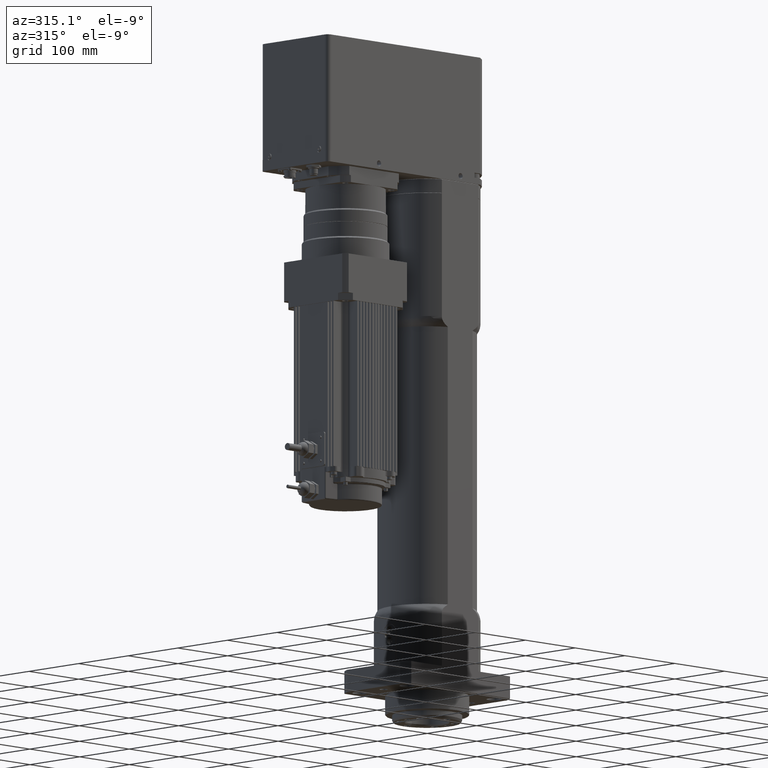
[diagram: clean part render]
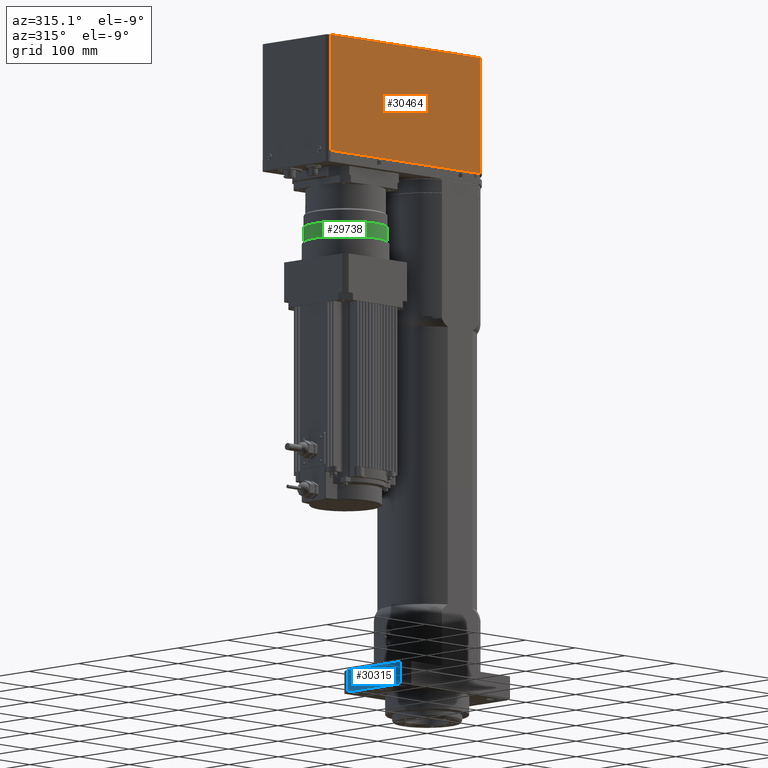
[diagram: same view with three faces highlighted in distinct colors, each labeled with its STEP entity id]
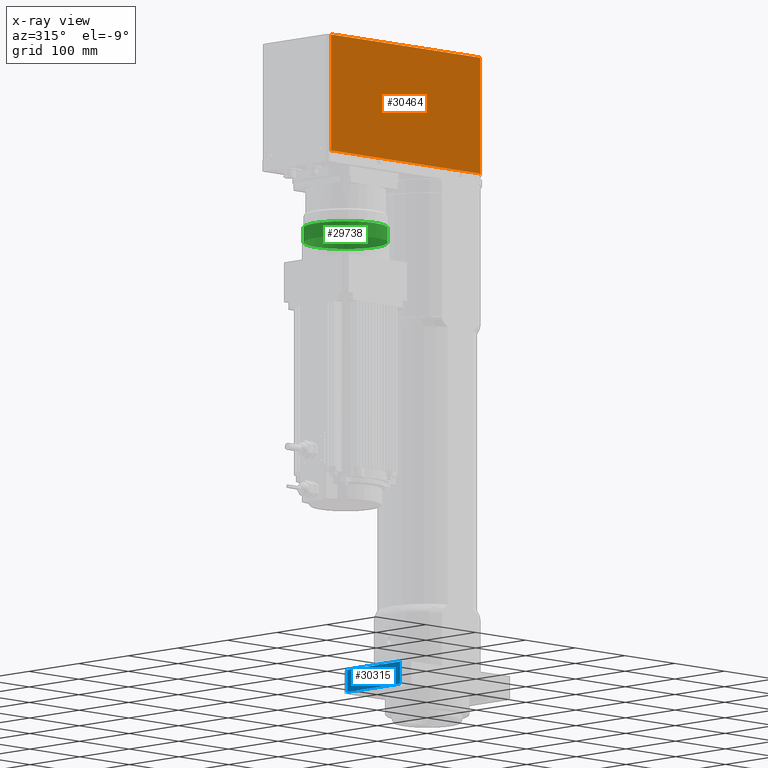
[diagram: x-ray of the same camera — body ghosted, the three highlighted faces saturated]
A machine part, auxiliary view with three faces highlighted in distinct colors.
The next image is the same camera in x-ray (body ghosted, the three faces saturated) — at least one of them is partly hidden behind the body in this view.
Their STEP definitions:

[orange] entity #30464 — the highlighted planar face has unit normal (0, -1, 0).
#882=PLANE('',#32591);
#3010=FACE_OUTER_BOUND('',#4838,.T.);
#4838=EDGE_LOOP('',(#23082,#23083,#23084,#23085,#23086));
#6756=LINE('',#51530,#9336);
#6986=LINE('',#53243,#9566);
#6995=LINE('',#53277,#9575);
#6996=LINE('',#53280,#9576);
#6997=LINE('',#53281,#9577);
#9336=VECTOR('',#36404,10.);
#9566=VECTOR('',#37348,10.);
#9575=VECTOR('',#37383,10.);
#9576=VECTOR('',#37386,10.);
#9577=VECTOR('',#37387,10.);
#12938=VERTEX_POINT('',#51018);
#13081=VERTEX_POINT('',#51481);
#13367=VERTEX_POINT('',#53241);
#13379=VERTEX_POINT('',#53275);
#13380=VERTEX_POINT('',#53279);
#16365=EDGE_CURVE('',#12938,#13081,#6756,.T.);
#16834=EDGE_CURVE('',#13081,#13367,#6986,.T.);
#16852=EDGE_CURVE('',#13367,#13379,#6995,.T.);
#16853=EDGE_CURVE('',#13380,#13379,#6996,.T.);
#16854=EDGE_CURVE('',#12938,#13380,#6997,.T.);
#23082=ORIENTED_EDGE('',*,*,#16365,.T.);
#23083=ORIENTED_EDGE('',*,*,#16834,.T.);
#23084=ORIENTED_EDGE('',*,*,#16852,.T.);
#23085=ORIENTED_EDGE('',*,*,#16853,.F.);
#23086=ORIENTED_EDGE('',*,*,#16854,.F.);
#30464=ADVANCED_FACE('',(#3010),#882,.T.);
#32591=AXIS2_PLACEMENT_3D('',#53278,#37384,#37385);
#36404=DIRECTION('',(8.90285788823E-16,-1.,7.95620553405098E-17));
#37348=DIRECTION('',(8.90285788823E-16,-1.,7.95620553405098E-17));
#37383=DIRECTION('',(8.00718342386111E-17,7.95620553405099E-17,1.));
#37384=DIRECTION('center_axis',(-1.,-8.90285788823E-16,8.00718342386112E-17));
#37385=DIRECTION('ref_axis',(8.90285788823E-16,-1.,7.95620553405098E-17));
#37386=DIRECTION('',(8.90285788823E-16,-1.,7.95620553405098E-17));
#37387=DIRECTION('',(8.00718342386111E-17,7.95620553405099E-17,1.));
#51018=CARTESIAN_POINT('',(-67.5000000000001,260.4,750.));
#51481=CARTESIAN_POINT('',(-67.5,-28.142833017344,750.));
#51530=CARTESIAN_POINT('',(-67.5000000000001,260.4,750.));
#53241=CARTESIAN_POINT('',(-67.4999999999998,-39.0864426623861,750.));
#53243=CARTESIAN_POINT('',(-67.5000000000001,260.4,750.));
#53275=CARTESIAN_POINT('',(-67.4999999999998,-39.0864426623861,917.));
#53277=CARTESIAN_POINT('',(-67.4999999999998,-39.0864426623861,750.));
#53278=CARTESIAN_POINT('Origin',(-67.5000000000001,260.4,750.));
#53279=CARTESIAN_POINT('',(-67.5000000000001,260.4,917.));
#53280=CARTESIAN_POINT('',(-67.5000000000001,260.4,917.));
#53281=CARTESIAN_POINT('',(-67.5000000000001,260.4,750.));

[blue] entity #30315 — the highlighted planar face has unit normal (-1, -0, 0).
#812=PLANE('',#32330);
#2861=FACE_OUTER_BOUND('',#4663,.T.);
#4663=EDGE_LOOP('',(#22326,#22327,#22328,#22329));
#5842=LINE('',#41738,#8422);
#6814=LINE('',#52184,#9394);
#6824=LINE('',#52220,#9404);
#6825=LINE('',#52222,#9405);
#8422=VECTOR('',#34004,10.);
#9394=VECTOR('',#36648,10.);
#9404=VECTOR('',#36690,10.);
#9405=VECTOR('',#36693,10.);
#12032=VERTEX_POINT('',#41735);
#12033=VERTEX_POINT('',#41737);
#13166=VERTEX_POINT('',#52181);
#13167=VERTEX_POINT('',#52183);
#14824=EDGE_CURVE('',#12032,#12033,#5842,.T.);
#16498=EDGE_CURVE('',#13166,#13167,#6814,.T.);
#16517=EDGE_CURVE('',#13166,#12033,#6824,.T.);
#16518=EDGE_CURVE('',#13167,#12032,#6825,.T.);
#22326=ORIENTED_EDGE('',*,*,#16498,.F.);
#22327=ORIENTED_EDGE('',*,*,#16517,.T.);
#22328=ORIENTED_EDGE('',*,*,#14824,.F.);
#22329=ORIENTED_EDGE('',*,*,#16518,.F.);
#30315=ADVANCED_FACE('',(#2861),#812,.T.);
#32330=AXIS2_PLACEMENT_3D('',#52221,#36691,#36692);
#34004=DIRECTION('',(-1.,0.,0.));
#36648=DIRECTION('',(1.,0.,0.));
#36690=DIRECTION('',(0.,0.,1.));
#36691=DIRECTION('center_axis',(0.,1.,0.));
#36692=DIRECTION('ref_axis',(-1.,0.,0.));
#36693=DIRECTION('',(0.,0.,1.));
#41735=CARTESIAN_POINT('',(53.3268225192539,107.5,32.));
#41737=CARTESIAN_POINT('',(-53.3268225192539,107.5,32.));
#41738=CARTESIAN_POINT('',(-53.3268225192539,107.5,32.));
#52181=CARTESIAN_POINT('',(-53.3268225192539,107.5,0.));
#52183=CARTESIAN_POINT('',(53.3268225192539,107.5,0.));
#52184=CARTESIAN_POINT('',(-53.3268225192539,107.5,0.));
#52220=CARTESIAN_POINT('',(-53.3268225192539,107.5,0.));
#52221=CARTESIAN_POINT('Origin',(53.3268225192539,107.5,0.));
#52222=CARTESIAN_POINT('',(53.3268225192539,107.5,0.));

[green] entity #29738 — the highlighted cylindrical surface (bore or boss wall) has radius 60 mm, axis along (-0, 0, -1).
#2284=FACE_OUTER_BOUND('',#3991,.T.);
#3991=EDGE_LOOP('',(#19376,#19377,#19378,#19379));
#5940=LINE('',#42254,#8520);
#8520=VECTOR('',#34366,59.9999999999999);
#11056=CIRCLE('',#31607,59.9999999999998);
#11057=CIRCLE('',#31609,59.9999999999999);
#12158=VERTEX_POINT('',#42248);
#12159=VERTEX_POINT('',#42252);
#14996=EDGE_CURVE('',#12158,#12158,#11056,.T.);
#14998=EDGE_CURVE('',#12159,#12159,#11057,.T.);
#14999=EDGE_CURVE('',#12159,#12158,#5940,.T.);
#19376=ORIENTED_EDGE('',*,*,#14998,.F.);
#19377=ORIENTED_EDGE('',*,*,#14999,.T.);
#19378=ORIENTED_EDGE('',*,*,#14996,.T.);
#19379=ORIENTED_EDGE('',*,*,#14999,.F.);
#27641=CYLINDRICAL_SURFACE('',#31608,59.9999999999999);
#29738=ADVANCED_FACE('',(#2284),#27641,.T.);
#31607=AXIS2_PLACEMENT_3D('',#42249,#34359,#34360);
#31608=AXIS2_PLACEMENT_3D('',#42251,#34362,#34363);
#31609=AXIS2_PLACEMENT_3D('',#42253,#34364,#34365);
#34359=DIRECTION('center_axis',(7.88860905221012E-30,2.25081679857747E-16,
-1.));
#34360=DIRECTION('ref_axis',(4.61646779138228E-15,-1.,-2.25081679857747E-16));
#34362=DIRECTION('center_axis',(7.88860905221012E-30,2.25081679857747E-16,
-1.));
#34363=DIRECTION('ref_axis',(-1.,-4.61646779138228E-15,-5.00967329905836E-16));
#34364=DIRECTION('center_axis',(7.88860905221012E-30,2.25081679857747E-16,
-1.));
#34365=DIRECTION('ref_axis',(4.61646779138228E-15,-1.,-2.25081679857747E-16));
#34366=DIRECTION('',(-7.88860905221012E-30,-2.25081679857747E-16,1.));
#42248=CARTESIAN_POINT('',(59.9999999999999,164.000000000001,656.699999999999));
#42249=CARTESIAN_POINT('Origin',(1.13595970351826E-27,164.000000000001,
656.699999999999));
#42251=CARTESIAN_POINT('Origin',(1.26217744835362E-27,164.000000000001,
646.099999999999));
#42252=CARTESIAN_POINT('',(59.9999999999999,164.000000000001,635.5));
#42253=CARTESIAN_POINT('Origin',(1.38839519318898E-27,164.000000000001,
635.5));
#42254=CARTESIAN_POINT('',(59.9999999999999,164.000000000001,646.099999999999));